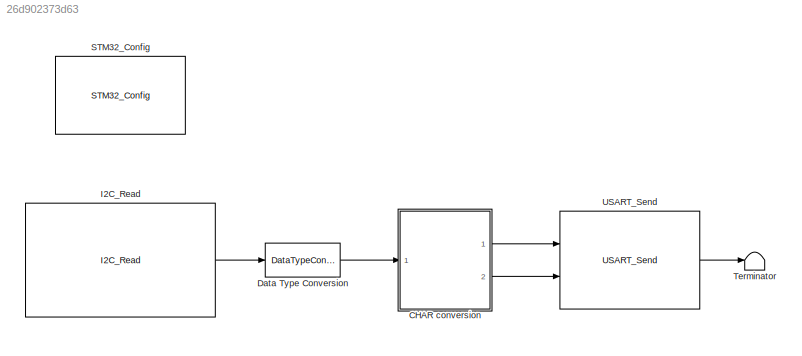
MODEL slx_26d902373d63
KIND model
CONFIG AbsTol = auto
CONFIG EnableMultiTasking = on
CONFIG FixedStep = 0.5
CONFIG MaxStep = auto
CONFIG MinStep = auto
CONFIG RelTol = 1e-3
CONFIG SampleTimeConstraint = Unconstrained
CONFIG Solver = FixedStepDiscrete
CONFIG SolverName = FixedStepDiscrete
CONFIG StartTime = 0.0
CONFIG StopTime = 10.0
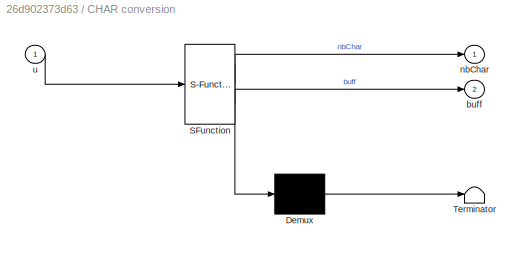
BLOCK [SubSystem] CHAR conversion
  ErrorFcn = Stateflow.Translate.translate
  PermitHierarchicalResolution = ExplicitOnly
  Ports = [1, 2]
  RequestExecContextInheritance = off
  SFBlockType = MATLAB Function
  TreatAsAtomicUnit = on
BLOCK [Demux] CHAR conversion/ Demux 
  Outputs = 1
  Ports = [1, 1]
BLOCK [S-Function] CHAR conversion/ SFunction 
  EnableBusSupport = on
  FunctionName = sf_sfun
  PortCounts = [1 3]
  Ports = [1, 3]
  SFcnIsStateOwnerBlock = off
  SFunctionDeploymentMode = off
  Tag = Stateflow S-Function F4_I2C1_DMA 2
BLOCK [Terminator] CHAR conversion/ Terminator 
BLOCK [Outport] CHAR conversion/buff
  IconDisplay = Port number
  Port = 2
BLOCK [Outport] CHAR conversion/nbChar
  IconDisplay = Port number
BLOCK [Inport] CHAR conversion/u
  IconDisplay = Port number
BLOCK [DataTypeConversion] Data Type Conversion
  OutDataTypeStr = uint32
  RndMeth = Floor
  SaturateOnIntegerOverflow = off
BLOCK [Reference] I2C_Read  REF=I2C_Lib/I2C_Read
  Ports = [0, 1]
  Priority = 2
  SourceBlock = I2C_Lib/I2C_Read
  SourceProductName = Target Support Package - STM32 Adapter
  SourceType = I2C_Read
BLOCK [Reference] STM32_Config  REF=STM32_Config_Lib/STM32_Config
  Ports = []
  Priority = 0
  SourceBlock = STM32_Config_Lib/STM32_Config
  SourceProductName = Target Support Package - STM32 Adapter
  SourceType = STM32_Config
BLOCK [Terminator] Terminator
BLOCK [Reference] USART_Send  REF=USART_Lib/USART_Send
  Ports = [2, 1]
  SourceBlock = USART_Lib/USART_Send
  SourceProductName = Target Support Package - STM32 Adapter
  SourceType = USART_Send
LINE CHAR conversion:1 -> USART_Send:1
LINE CHAR conversion:2 -> USART_Send:2
LINE Data Type Conversion:1 -> CHAR conversion:1
LINE I2C_Read:1 -> Data Type Conversion:1
LINE USART_Send:1 -> Terminator:1
CHART CHAR conversion states=1 transitions=1
  STATE_LABEL 'eML_blk_kernel()'
  STATE_LABEL "SCRIPT:\nfunction [nbChar, buff] = convert(u)\nif coder.target('Sfun')\n    % Executing in MATLAB, Buff is null\n    buff = uint32(0);\n    nbChar = uint16(0);\nelse\n    coder.cinclude('stdio.h');\n    coder.cinclude('getBuffPtr.h');\n\n    % Executing in the generated code.\n    string = char(zeros(1,40));\n    stringSize = uint16(size(string,2));\n\n    stringFormat = char(['  Byte0: 0x%02x, Byte1: 0x%02x',1...<+178ch>"
